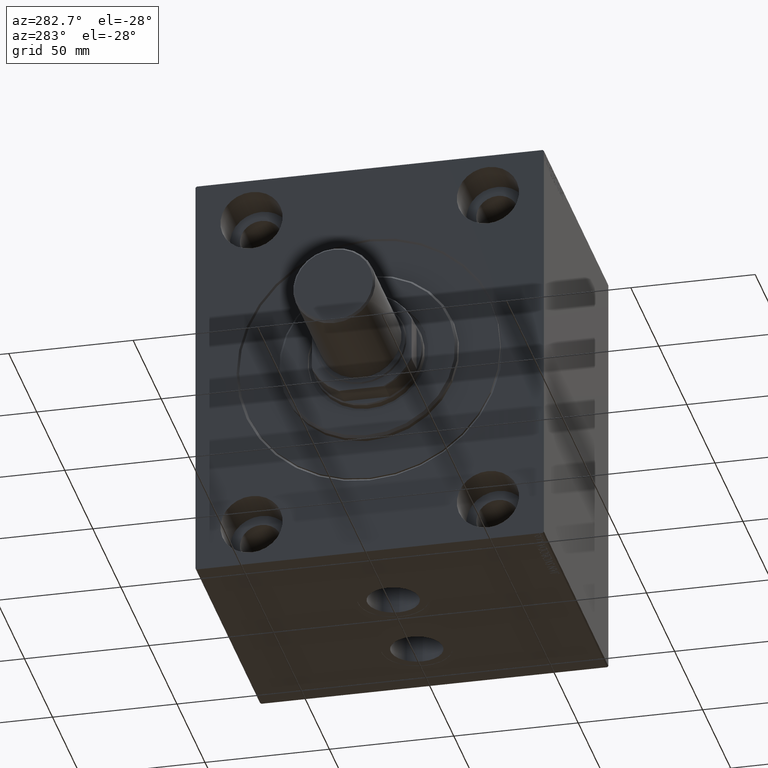
[diagram: clean part render]
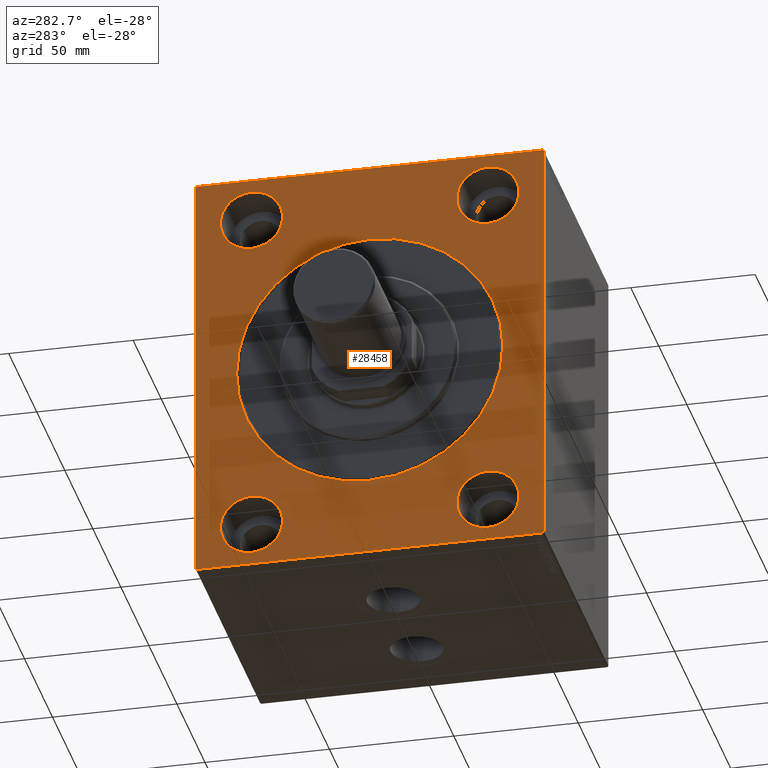
[diagram: same view with one face highlighted and labeled with its STEP entity id]
A machine part, auxiliary view. The second image highlights one B-rep face of the part: STEP entity #28458.
In plain terms, the highlighted planar face has unit normal (1, 0, 0).
Its self-contained STEP definition (entity closure, byte-faithful):
#83 = CARTESIAN_POINT ( 'NONE',  ( 0.000000000000000000, -47.49999999999997868, 67.50000000000000000 ) ) ;
#1479 = FACE_BOUND ( 'NONE', #43700, .T. ) ;
#1716 = CIRCLE ( 'NONE', #16440, 12.49999999999999645 ) ;
#1733 = DIRECTION ( 'NONE',  ( -1.000000000000000000, 0.000000000000000000, 0.000000000000000000 ) ) ;
#1950 = VECTOR ( 'NONE', #32622, 1000.000000000000000 ) ;
#2543 = VECTOR ( 'NONE', #13725, 1000.000000000000000 ) ;
#3231 = DIRECTION ( 'NONE',  ( 0.000000000000000000, 1.000000000000000000, 9.912705577010325549E-17 ) ) ;
#4366 = EDGE_LOOP ( 'NONE', ( #27808, #31562, #20012, #14010, #37764, #4844, #20662, #21220 ) ) ;
#4844 = ORIENTED_EDGE ( 'NONE', *, *, #31001, .T. ) ;
#4885 = VERTEX_POINT ( 'NONE', #29633 ) ;
#5326 = CIRCLE ( 'NONE', #15626, 12.49999999999999645 ) ;
#5474 = CARTESIAN_POINT ( 'NONE',  ( 0.000000000000000000, 47.50000000000000711, 80.00000000000001421 ) ) ;
#5929 = VERTEX_POINT ( 'NONE', #40286 ) ;
#5981 = CIRCLE ( 'NONE', #28089, 53.50000000000000000 ) ;
#7003 = VECTOR ( 'NONE', #8554, 1000.000000000000000 ) ;
#7119 = CIRCLE ( 'NONE', #9323, 12.50000000000001066 ) ;
#7412 = CARTESIAN_POINT ( 'NONE',  ( 0.000000000000000000, -47.49999999999997868, 55.00000000000000000 ) ) ;
#7593 = ORIENTED_EDGE ( 'NONE', *, *, #34624, .F. ) ;
#7655 = EDGE_CURVE ( 'NONE', #12136, #8933, #44353, .T. ) ;
#7731 = VECTOR ( 'NONE', #3231, 1000.000000000000000 ) ;
#8358 = ORIENTED_EDGE ( 'NONE', *, *, #25680, .T. ) ;
#8554 = DIRECTION ( 'NONE',  ( 0.000000000000000000, 0.000000000000000000, -1.000000000000000000 ) ) ;
#8908 = VERTEX_POINT ( 'NONE', #10661 ) ;
#8933 = VERTEX_POINT ( 'NONE', #7412 ) ;
#9323 = AXIS2_PLACEMENT_3D ( 'NONE', #27089, #20590, #13008 ) ;
#9385 = EDGE_CURVE ( 'NONE', #11935, #31379, #1716, .T. ) ;
#9469 = LINE ( 'NONE', #41050, #7003 ) ;
#9729 = LINE ( 'NONE', #23797, #42249 ) ;
#9832 = VERTEX_POINT ( 'NONE', #38085 ) ;
#10590 = VERTEX_POINT ( 'NONE', #28536 ) ;
#10661 = CARTESIAN_POINT ( 'NONE',  ( 0.000000000000000000, -69.99999999999998579, 84.50000000000001421 ) ) ;
#10884 = ORIENTED_EDGE ( 'NONE', *, *, #14745, .F. ) ;
#11087 = EDGE_CURVE ( 'NONE', #4885, #45107, #31972, .T. ) ;
#11170 = DIRECTION ( 'NONE',  ( 0.000000000000000000, 0.000000000000000000, 1.000000000000000000 ) ) ;
#11897 = DIRECTION ( 'NONE',  ( 1.000000000000000000, 0.000000000000000000, 0.000000000000000000 ) ) ;
#11935 = VERTEX_POINT ( 'NONE', #23790 ) ;
#12136 = VERTEX_POINT ( 'NONE', #12446 ) ;
#12446 = CARTESIAN_POINT ( 'NONE',  ( 0.000000000000000000, -47.49999999999997868, 80.00000000000001421 ) ) ;
#12659 = AXIS2_PLACEMENT_3D ( 'NONE', #15785, #40440, #32853 ) ;
#12993 = CARTESIAN_POINT ( 'NONE',  ( 0.000000000000000000, 0.000000000000000000, 0.000000000000000000 ) ) ;
#13008 = DIRECTION ( 'NONE',  ( 0.000000000000000000, 0.000000000000000000, 1.000000000000000000 ) ) ;
#13216 = DIRECTION ( 'NONE',  ( 0.000000000000000000, 0.000000000000000000, -1.000000000000000000 ) ) ;
#13400 = EDGE_CURVE ( 'NONE', #5929, #44140, #44604, .T. ) ;
#13573 = AXIS2_PLACEMENT_3D ( 'NONE', #12993, #23583, #13216 ) ;
#13725 = DIRECTION ( 'NONE',  ( -0.000000000000000000, -0.7071067811865573427, 0.7071067811865378028 ) ) ;
#13757 = EDGE_CURVE ( 'NONE', #5929, #35725, #20980, .T. ) ;
#13891 = DIRECTION ( 'NONE',  ( 0.000000000000000000, -0.7071067811865376918, -0.7071067811865574537 ) ) ;
#14010 = ORIENTED_EDGE ( 'NONE', *, *, #34514, .T. ) ;
#14090 = VERTEX_POINT ( 'NONE', #24847 ) ;
#14158 = DIRECTION ( 'NONE',  ( 0.000000000000000000, 0.000000000000000000, 1.000000000000000000 ) ) ;
#14186 = VECTOR ( 'NONE', #31665, 1000.000000000000114 ) ;
#14207 = AXIS2_PLACEMENT_3D ( 'NONE', #40736, #37268, #17895 ) ;
#14745 = EDGE_CURVE ( 'NONE', #10590, #14090, #40116, .T. ) ;
#14967 = AXIS2_PLACEMENT_3D ( 'NONE', #83, #35802, #14158 ) ;
#15209 = ORIENTED_EDGE ( 'NONE', *, *, #7655, .F. ) ;
#15586 = CARTESIAN_POINT ( 'NONE',  ( 0.000000000000000000, -47.49999999999999289, -80.00000000000000000 ) ) ;
#15607 = DIRECTION ( 'NONE',  ( 0.000000000000000000, 0.000000000000000000, 1.000000000000000000 ) ) ;
#15626 = AXIS2_PLACEMENT_3D ( 'NONE', #35386, #36054, #11170 ) ;
#15785 = CARTESIAN_POINT ( 'NONE',  ( 0.000000000000000000, 0.000000000000000000, 0.000000000000000000 ) ) ;
#16440 = AXIS2_PLACEMENT_3D ( 'NONE', #28578, #18403, #25558 ) ;
#17895 = DIRECTION ( 'NONE',  ( 0.000000000000000000, 0.000000000000000000, 1.000000000000000000 ) ) ;
#17991 = EDGE_CURVE ( 'NONE', #9832, #41634, #39980, .T. ) ;
#18061 = EDGE_CURVE ( 'NONE', #45543, #30265, #7119, .T. ) ;
#18403 = DIRECTION ( 'NONE',  ( -1.000000000000000000, 0.000000000000000000, 0.000000000000000000 ) ) ;
#18601 = AXIS2_PLACEMENT_3D ( 'NONE', #33099, #1733, #32411 ) ;
#18786 = PLANE ( 'NONE',  #12659 ) ;
#20012 = ORIENTED_EDGE ( 'NONE', *, *, #17991, .F. ) ;
#20265 = CARTESIAN_POINT ( 'NONE',  ( 0.000000000000000000, 70.00000000000001421, 84.50000000000001421 ) ) ;
#20277 = VERTEX_POINT ( 'NONE', #37536 ) ;
#20532 = EDGE_CURVE ( 'NONE', #31379, #11935, #30834, .T. ) ;
#20590 = DIRECTION ( 'NONE',  ( -1.000000000000000000, 0.000000000000000000, 0.000000000000000000 ) ) ;
#20662 = ORIENTED_EDGE ( 'NONE', *, *, #13757, .F. ) ;
#20980 = LINE ( 'NONE', #24439, #7731 ) ;
#21220 = ORIENTED_EDGE ( 'NONE', *, *, #13400, .T. ) ;
#23583 = DIRECTION ( 'NONE',  ( 1.000000000000000000, 0.000000000000000000, 0.000000000000000000 ) ) ;
#23790 = CARTESIAN_POINT ( 'NONE',  ( 0.000000000000000000, -47.49999999999999289, -55.00000000000000711 ) ) ;
#23797 = CARTESIAN_POINT ( 'NONE',  ( 0.000000000000000000, 70.00000000000002842, -85.00000000000001421 ) ) ;
#23806 = CARTESIAN_POINT ( 'NONE',  ( 0.000000000000000000, 70.00000000000002842, -84.50000000000004263 ) ) ;
#24439 = CARTESIAN_POINT ( 'NONE',  ( 0.000000000000000000, -69.99999999999998579, -85.00000000000002842 ) ) ;
#24619 = CIRCLE ( 'NONE', #14207, 12.50000000000001066 ) ;
#24847 = CARTESIAN_POINT ( 'NONE',  ( 0.000000000000000000, 47.50000000000000711, -55.00000000000000711 ) ) ;
#25558 = DIRECTION ( 'NONE',  ( 0.000000000000000000, 0.000000000000000000, 1.000000000000000000 ) ) ;
#25583 = ORIENTED_EDGE ( 'NONE', *, *, #18061, .F. ) ;
#25680 = EDGE_CURVE ( 'NONE', #45107, #4885, #5981, .T. ) ;
#25697 = CARTESIAN_POINT ( 'NONE',  ( 0.000000000000000000, 0.000000000000000000, 53.50000000000000000 ) ) ;
#26151 = AXIS2_PLACEMENT_3D ( 'NONE', #41839, #27336, #31480 ) ;
#26337 = ORIENTED_EDGE ( 'NONE', *, *, #11087, .T. ) ;
#26664 = CARTESIAN_POINT ( 'NONE',  ( 0.000000000000000000, 0.000000000000000000, 0.000000000000000000 ) ) ;
#26855 = FACE_BOUND ( 'NONE', #43390, .T. ) ;
#27089 = CARTESIAN_POINT ( 'NONE',  ( 0.000000000000000000, 47.50000000000000711, 67.50000000000000000 ) ) ;
#27336 = DIRECTION ( 'NONE',  ( -1.000000000000000000, 0.000000000000000000, 0.000000000000000000 ) ) ;
#27341 = CARTESIAN_POINT ( 'NONE',  ( 0.000000000000000000, -69.49999999999998579, -85.00000000000002842 ) ) ;
#27512 = LINE ( 'NONE', #23806, #27533 ) ;
#27533 = VECTOR ( 'NONE', #13891, 999.9999999999998863 ) ;
#27808 = ORIENTED_EDGE ( 'NONE', *, *, #40403, .F. ) ;
#28089 = AXIS2_PLACEMENT_3D ( 'NONE', #26664, #11897, #44382 ) ;
#28298 = EDGE_CURVE ( 'NONE', #14090, #10590, #5326, .T. ) ;
#28386 = CARTESIAN_POINT ( 'NONE',  ( 0.000000000000000000, 47.50000000000000711, 55.00000000000000000 ) ) ;
#28458 = ADVANCED_FACE ( 'NONE', ( #1479, #26855, #29405, #36291, #40897, #40214 ), #18786, .F. ) ;
#28536 = CARTESIAN_POINT ( 'NONE',  ( 0.000000000000000000, 47.50000000000000711, -80.00000000000000000 ) ) ;
#28578 = CARTESIAN_POINT ( 'NONE',  ( 0.000000000000000000, -47.49999999999999289, -67.50000000000000000 ) ) ;
#28614 = EDGE_CURVE ( 'NONE', #8908, #41634, #35783, .T. ) ;
#29364 = AXIS2_PLACEMENT_3D ( 'NONE', #43490, #33360, #15607 ) ;
#29405 = FACE_BOUND ( 'NONE', #40857, .T. ) ;
#29633 = CARTESIAN_POINT ( 'NONE',  ( 0.000000000000000000, 6.551860375438339893E-15, -53.50000000000000000 ) ) ;
#30143 = CARTESIAN_POINT ( 'NONE',  ( 0.000000000000000000, 69.50000000000001421, 85.00000000000000000 ) ) ;
#30265 = VERTEX_POINT ( 'NONE', #5474 ) ;
#30834 = CIRCLE ( 'NONE', #29364, 12.49999999999999645 ) ;
#31001 = EDGE_CURVE ( 'NONE', #20277, #35725, #27512, .T. ) ;
#31379 = VERTEX_POINT ( 'NONE', #15586 ) ;
#31480 = DIRECTION ( 'NONE',  ( 0.000000000000000000, 0.000000000000000000, 1.000000000000000000 ) ) ;
#31562 = ORIENTED_EDGE ( 'NONE', *, *, #28614, .T. ) ;
#31665 = DIRECTION ( 'NONE',  ( -0.000000000000000000, 0.7071067811865474617, 0.7071067811865474617 ) ) ;
#31933 = CARTESIAN_POINT ( 'NONE',  ( 0.000000000000000000, -69.99999999999998579, -84.50000000000004263 ) ) ;
#31972 = CIRCLE ( 'NONE', #13573, 53.50000000000000000 ) ;
#32411 = DIRECTION ( 'NONE',  ( 0.000000000000000000, 0.000000000000000000, 1.000000000000000000 ) ) ;
#32622 = DIRECTION ( 'NONE',  ( 0.000000000000000000, -1.000000000000000000, -9.912705577010325549E-17 ) ) ;
#32853 = DIRECTION ( 'NONE',  ( 0.000000000000000000, 0.000000000000000000, -1.000000000000000000 ) ) ;
#33080 = CARTESIAN_POINT ( 'NONE',  ( 0.000000000000000000, 70.00000000000001421, 85.00000000000000000 ) ) ;
#33099 = CARTESIAN_POINT ( 'NONE',  ( 0.000000000000000000, -47.49999999999997868, 67.50000000000000000 ) ) ;
#33360 = DIRECTION ( 'NONE',  ( -1.000000000000000000, 0.000000000000000000, 0.000000000000000000 ) ) ;
#34126 = EDGE_LOOP ( 'NONE', ( #41300, #35765 ) ) ;
#34332 = VERTEX_POINT ( 'NONE', #20265 ) ;
#34514 = EDGE_CURVE ( 'NONE', #9832, #34332, #40280, .T. ) ;
#34624 = EDGE_CURVE ( 'NONE', #30265, #45543, #24619, .T. ) ;
#34838 = CIRCLE ( 'NONE', #14967, 12.50000000000001066 ) ;
#35386 = CARTESIAN_POINT ( 'NONE',  ( 0.000000000000000000, 47.50000000000000711, -67.50000000000000000 ) ) ;
#35725 = VERTEX_POINT ( 'NONE', #37218 ) ;
#35765 = ORIENTED_EDGE ( 'NONE', *, *, #20532, .F. ) ;
#35783 = LINE ( 'NONE', #36001, #14186 ) ;
#35802 = DIRECTION ( 'NONE',  ( -1.000000000000000000, 0.000000000000000000, 0.000000000000000000 ) ) ;
#35816 = EDGE_CURVE ( 'NONE', #8933, #12136, #34838, .T. ) ;
#36001 = CARTESIAN_POINT ( 'NONE',  ( 0.000000000000000000, -69.99999999999998579, 84.50000000000001421 ) ) ;
#36012 = EDGE_CURVE ( 'NONE', #20277, #34332, #9729, .T. ) ;
#36054 = DIRECTION ( 'NONE',  ( -1.000000000000000000, 0.000000000000000000, 0.000000000000000000 ) ) ;
#36291 = FACE_BOUND ( 'NONE', #42418, .T. ) ;
#36646 = CARTESIAN_POINT ( 'NONE',  ( 0.000000000000000000, -69.50000000000001421, 84.99999999999998579 ) ) ;
#37218 = CARTESIAN_POINT ( 'NONE',  ( 0.000000000000000000, 69.50000000000007105, -85.00000000000001421 ) ) ;
#37268 = DIRECTION ( 'NONE',  ( -1.000000000000000000, 0.000000000000000000, 0.000000000000000000 ) ) ;
#37536 = CARTESIAN_POINT ( 'NONE',  ( 0.000000000000000000, 70.00000000000002842, -84.50000000000004263 ) ) ;
#37764 = ORIENTED_EDGE ( 'NONE', *, *, #36012, .F. ) ;
#37853 = DIRECTION ( 'NONE',  ( 0.000000000000000000, -8.163404592832031500E-17, 1.000000000000000000 ) ) ;
#38085 = CARTESIAN_POINT ( 'NONE',  ( 0.000000000000000000, 69.50000000000001421, 85.00000000000000000 ) ) ;
#39381 = ORIENTED_EDGE ( 'NONE', *, *, #28298, .F. ) ;
#39980 = LINE ( 'NONE', #33080, #1950 ) ;
#40116 = CIRCLE ( 'NONE', #26151, 12.49999999999999645 ) ;
#40214 = FACE_OUTER_BOUND ( 'NONE', #4366, .T. ) ;
#40280 = LINE ( 'NONE', #30143, #44471 ) ;
#40286 = CARTESIAN_POINT ( 'NONE',  ( 0.000000000000000000, -69.49999999999998579, -85.00000000000002842 ) ) ;
#40403 = EDGE_CURVE ( 'NONE', #8908, #44140, #9469, .T. ) ;
#40440 = DIRECTION ( 'NONE',  ( 1.000000000000000000, 0.000000000000000000, 0.000000000000000000 ) ) ;
#40736 = CARTESIAN_POINT ( 'NONE',  ( 0.000000000000000000, 47.50000000000000711, 67.50000000000000000 ) ) ;
#40857 = EDGE_LOOP ( 'NONE', ( #15209, #45514 ) ) ;
#40897 = FACE_BOUND ( 'NONE', #34126, .T. ) ;
#41050 = CARTESIAN_POINT ( 'NONE',  ( 0.000000000000000000, -69.99999999999998579, 84.99999999999998579 ) ) ;
#41300 = ORIENTED_EDGE ( 'NONE', *, *, #9385, .F. ) ;
#41634 = VERTEX_POINT ( 'NONE', #36646 ) ;
#41839 = CARTESIAN_POINT ( 'NONE',  ( 0.000000000000000000, 47.50000000000000711, -67.50000000000000000 ) ) ;
#42249 = VECTOR ( 'NONE', #37853, 1000.000000000000000 ) ;
#42418 = EDGE_LOOP ( 'NONE', ( #7593, #25583 ) ) ;
#43390 = EDGE_LOOP ( 'NONE', ( #39381, #10884 ) ) ;
#43490 = CARTESIAN_POINT ( 'NONE',  ( 0.000000000000000000, -47.49999999999999289, -67.50000000000000000 ) ) ;
#43700 = EDGE_LOOP ( 'NONE', ( #8358, #26337 ) ) ;
#44140 = VERTEX_POINT ( 'NONE', #31933 ) ;
#44177 = DIRECTION ( 'NONE',  ( -0.000000000000000000, 0.7071067811865573427, -0.7071067811865378028 ) ) ;
#44353 = CIRCLE ( 'NONE', #18601, 12.50000000000001066 ) ;
#44382 = DIRECTION ( 'NONE',  ( 0.000000000000000000, 0.000000000000000000, -1.000000000000000000 ) ) ;
#44471 = VECTOR ( 'NONE', #44177, 1000.000000000000000 ) ;
#44604 = LINE ( 'NONE', #27341, #2543 ) ;
#45107 = VERTEX_POINT ( 'NONE', #25697 ) ;
#45514 = ORIENTED_EDGE ( 'NONE', *, *, #35816, .F. ) ;
#45543 = VERTEX_POINT ( 'NONE', #28386 ) ;